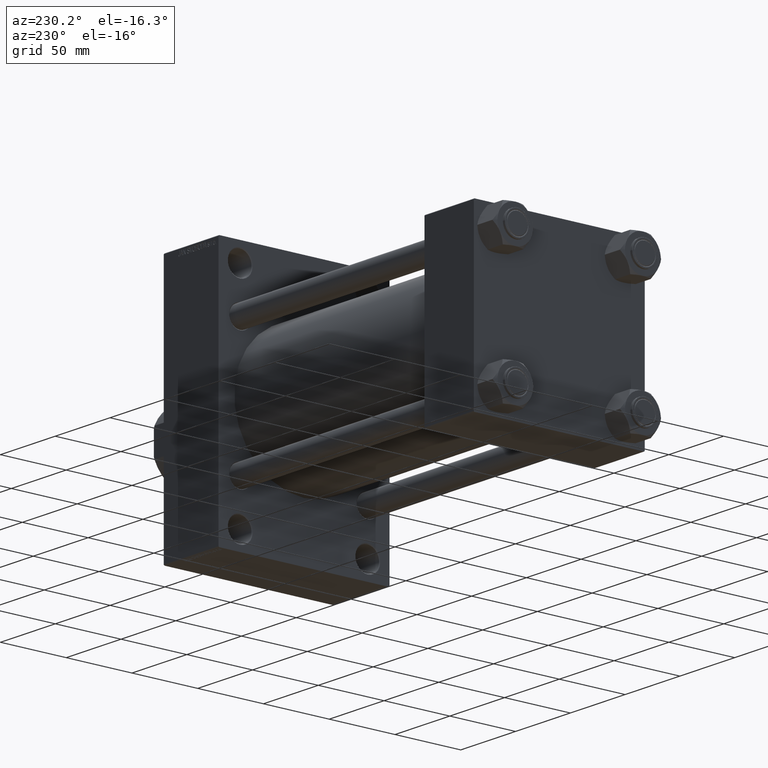
[diagram: clean part render]
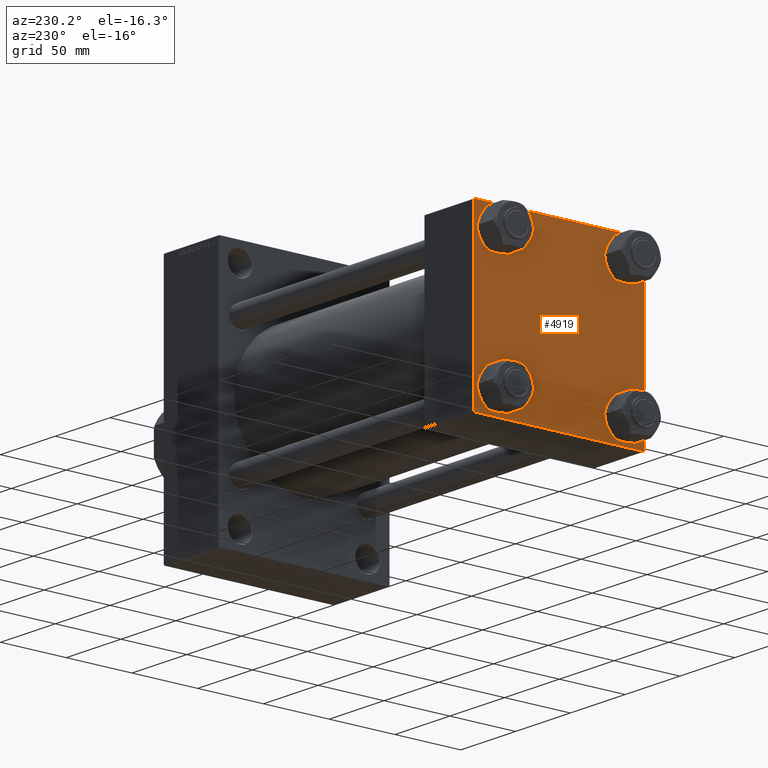
[diagram: same view with one face highlighted and labeled with its STEP entity id]
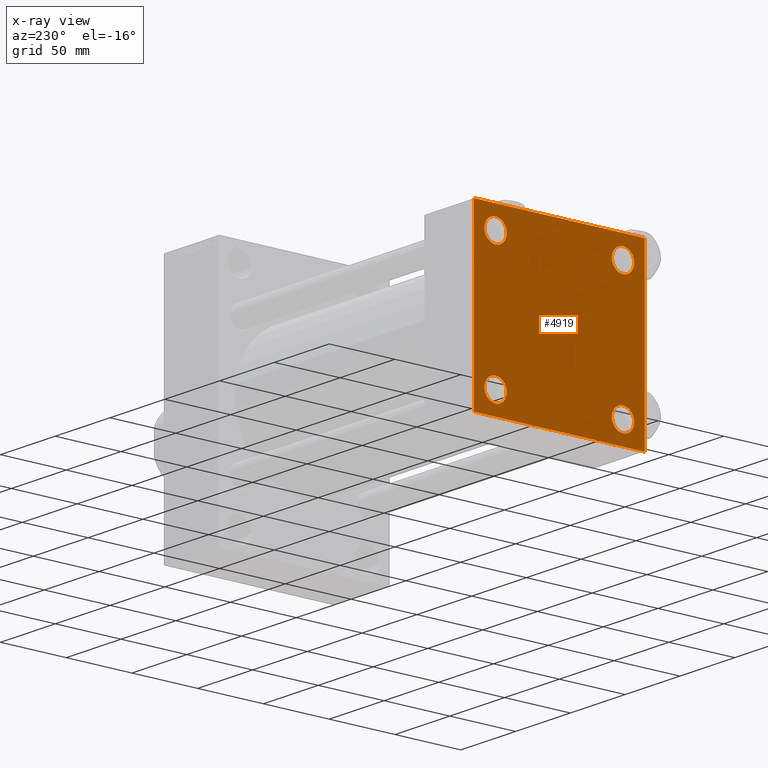
[diagram: x-ray of the same camera — body ghosted, the highlighted face saturated]
A machine part, auxiliary view. The second image highlights one B-rep face of the part: STEP entity #4919.
The next image is the same camera in x-ray: the body ghosted, the highlighted face saturated — about 0% of this face is hidden behind the body in this view.
In plain terms, the highlighted planar face has unit normal (-1, 0, 0).
Its self-contained STEP definition (entity closure, byte-faithful):
#38 = LINE ( 'NONE', #18143, #10574 ) ;
#48 = EDGE_LOOP ( 'NONE', ( #11222, #20313 ) ) ;
#607 = VECTOR ( 'NONE', #25016, 1000.000000000000000 ) ;
#1031 = VECTOR ( 'NONE', #32071, 1000.000000000000000 ) ;
#1186 = DIRECTION ( 'NONE',  ( 1.000000000000000000, -0.000000000000000000, 0.000000000000000000 ) ) ;
#1323 = EDGE_LOOP ( 'NONE', ( #31690, #28430, #8365, #35367, #41156, #17606, #10657, #9487 ) ) ;
#1426 = DIRECTION ( 'NONE',  ( 0.000000000000000000, 0.000000000000000000, 1.000000000000000000 ) ) ;
#1789 = EDGE_CURVE ( 'NONE', #27943, #20549, #7129, .T. ) ;
#2237 = CARTESIAN_POINT ( 'NONE',  ( 0.000000000000000000, -64.49999999999997158, 65.00000000000000000 ) ) ;
#2377 = AXIS2_PLACEMENT_3D ( 'NONE', #5507, #38829, #31565 ) ;
#2604 = AXIS2_PLACEMENT_3D ( 'NONE', #44673, #37896, #16160 ) ;
#2644 = AXIS2_PLACEMENT_3D ( 'NONE', #11565, #1186, #11804 ) ;
#2728 = VERTEX_POINT ( 'NONE', #33144 ) ;
#3008 = VERTEX_POINT ( 'NONE', #4369 ) ;
#3076 = LINE ( 'NONE', #35906, #607 ) ;
#3269 = CARTESIAN_POINT ( 'NONE',  ( 0.000000000000000000, -64.75000000000176215, -64.74999999999816680 ) ) ;
#3898 = VERTEX_POINT ( 'NONE', #6326 ) ;
#4066 = DIRECTION ( 'NONE',  ( 0.000000000000000000, 0.000000000000000000, 1.000000000000000000 ) ) ;
#4141 = FACE_BOUND ( 'NONE', #45693, .T. ) ;
#4235 = AXIS2_PLACEMENT_3D ( 'NONE', #6819, #15009, #36975 ) ;
#4369 = CARTESIAN_POINT ( 'NONE',  ( 0.000000000000000000, 48.45000000000000995, 56.95000000000002416 ) ) ;
#4483 = CARTESIAN_POINT ( 'NONE',  ( 0.000000000000000000, -48.44999999999999574, -39.95000000000001705 ) ) ;
#4919 = ADVANCED_FACE ( 'NONE', ( #4141, #11866, #26093, #41340, #22710 ), #40852, .T. ) ;
#5111 = EDGE_CURVE ( 'NONE', #8240, #3008, #7241, .T. ) ;
#5507 = CARTESIAN_POINT ( 'NONE',  ( 0.000000000000000000, -48.44999999999999574, -48.45000000000003126 ) ) ;
#5948 = CARTESIAN_POINT ( 'NONE',  ( 0.000000000000000000, 48.45000000000000995, -39.95000000000000284 ) ) ;
#6326 = CARTESIAN_POINT ( 'NONE',  ( 0.000000000000000000, -48.44999999999999574, 56.95000000000003837 ) ) ;
#6782 = EDGE_CURVE ( 'NONE', #7573, #3898, #38151, .T. ) ;
#6819 = CARTESIAN_POINT ( 'NONE',  ( 0.000000000000000000, -48.44999999999999574, 48.45000000000003126 ) ) ;
#6890 = LINE ( 'NONE', #3269, #20554 ) ;
#7129 = CIRCLE ( 'NONE', #34148, 8.500000000000007105 ) ;
#7164 = EDGE_CURVE ( 'NONE', #20549, #27943, #8095, .T. ) ;
#7241 = CIRCLE ( 'NONE', #2644, 8.500000000000007105 ) ;
#7573 = VERTEX_POINT ( 'NONE', #41234 ) ;
#8095 = CIRCLE ( 'NONE', #2604, 8.500000000000007105 ) ;
#8240 = VERTEX_POINT ( 'NONE', #29137 ) ;
#8365 = ORIENTED_EDGE ( 'NONE', *, *, #36643, .T. ) ;
#8665 = DIRECTION ( 'NONE',  ( 1.000000000000000000, -0.000000000000000000, 0.000000000000000000 ) ) ;
#9446 = CARTESIAN_POINT ( 'NONE',  ( 0.000000000000000000, -65.00000000000000000, -64.49999999999991473 ) ) ;
#9487 = ORIENTED_EDGE ( 'NONE', *, *, #13123, .T. ) ;
#10574 = VECTOR ( 'NONE', #40124, 1000.000000000000114 ) ;
#10657 = ORIENTED_EDGE ( 'NONE', *, *, #29380, .F. ) ;
#10955 = CARTESIAN_POINT ( 'NONE',  ( 0.000000000000000000, 65.00000000000000000, -64.99999999999998579 ) ) ;
#11222 = ORIENTED_EDGE ( 'NONE', *, *, #1789, .T. ) ;
#11565 = CARTESIAN_POINT ( 'NONE',  ( 0.000000000000000000, 48.45000000000000995, 48.45000000000001705 ) ) ;
#11701 = ORIENTED_EDGE ( 'NONE', *, *, #46616, .T. ) ;
#11804 = DIRECTION ( 'NONE',  ( 0.000000000000000000, 0.000000000000000000, 1.000000000000000000 ) ) ;
#11866 = FACE_BOUND ( 'NONE', #24830, .T. ) ;
#12346 = CARTESIAN_POINT ( 'NONE',  ( 0.000000000000000000, 0.000000000000000000, 0.000000000000000000 ) ) ;
#13123 = EDGE_CURVE ( 'NONE', #24679, #44660, #32268, .T. ) ;
#13168 = CIRCLE ( 'NONE', #2377, 8.500000000000007105 ) ;
#13499 = LINE ( 'NONE', #46580, #1031 ) ;
#15009 = DIRECTION ( 'NONE',  ( 1.000000000000000000, -0.000000000000000000, 0.000000000000000000 ) ) ;
#15167 = DIRECTION ( 'NONE',  ( 1.000000000000000000, -0.000000000000000000, 0.000000000000000000 ) ) ;
#15618 = CARTESIAN_POINT ( 'NONE',  ( 0.000000000000000000, 64.49999999999997158, 65.00000000000001421 ) ) ;
#15725 = DIRECTION ( 'NONE',  ( -0.000000000000000000, 0.000000000000000000, 1.000000000000000000 ) ) ;
#16160 = DIRECTION ( 'NONE',  ( 0.000000000000000000, 0.000000000000000000, 1.000000000000000000 ) ) ;
#16508 = CARTESIAN_POINT ( 'NONE',  ( 0.000000000000000000, -48.44999999999999574, -48.45000000000003126 ) ) ;
#17606 = ORIENTED_EDGE ( 'NONE', *, *, #21929, .T. ) ;
#17724 = DIRECTION ( 'NONE',  ( 0.000000000000000000, -1.000000000000000000, -1.067522139062650425E-16 ) ) ;
#17983 = DIRECTION ( 'NONE',  ( 0.000000000000000000, -0.7071067811865279218, 0.7071067811865671127 ) ) ;
#18143 = CARTESIAN_POINT ( 'NONE',  ( 0.000000000000000000, 64.74999999999997158, -64.74999999999997158 ) ) ;
#19194 = EDGE_CURVE ( 'NONE', #32174, #26499, #13168, .T. ) ;
#20189 = EDGE_CURVE ( 'NONE', #26499, #32174, #29365, .T. ) ;
#20313 = ORIENTED_EDGE ( 'NONE', *, *, #7164, .T. ) ;
#20549 = VERTEX_POINT ( 'NONE', #31649 ) ;
#20554 = VECTOR ( 'NONE', #17983, 1000.000000000000000 ) ;
#21573 = LINE ( 'NONE', #10955, #22854 ) ;
#21582 = CIRCLE ( 'NONE', #33173, 8.500000000000007105 ) ;
#21759 = EDGE_CURVE ( 'NONE', #3898, #7573, #27101, .T. ) ;
#21929 = EDGE_CURVE ( 'NONE', #2728, #30095, #44769, .T. ) ;
#22528 = DIRECTION ( 'NONE',  ( -0.000000000000000000, 0.7071067811865672237, 0.7071067811865279218 ) ) ;
#22710 = FACE_OUTER_BOUND ( 'NONE', #1323, .T. ) ;
#22854 = VECTOR ( 'NONE', #17724, 1000.000000000000000 ) ;
#23979 = DIRECTION ( 'NONE',  ( 0.000000000000000000, 0.000000000000000000, 1.000000000000000000 ) ) ;
#24159 = VERTEX_POINT ( 'NONE', #9446 ) ;
#24679 = VERTEX_POINT ( 'NONE', #15618 ) ;
#24830 = EDGE_LOOP ( 'NONE', ( #45007, #24944 ) ) ;
#24944 = ORIENTED_EDGE ( 'NONE', *, *, #20189, .T. ) ;
#25016 = DIRECTION ( 'NONE',  ( 0.000000000000000000, 0.000000000000000000, -1.000000000000000000 ) ) ;
#26093 = FACE_BOUND ( 'NONE', #48, .T. ) ;
#26381 = ORIENTED_EDGE ( 'NONE', *, *, #21759, .T. ) ;
#26499 = VERTEX_POINT ( 'NONE', #38692 ) ;
#27101 = CIRCLE ( 'NONE', #34040, 8.500000000000007105 ) ;
#27110 = EDGE_LOOP ( 'NONE', ( #11701, #30763 ) ) ;
#27943 = VERTEX_POINT ( 'NONE', #5948 ) ;
#28187 = CARTESIAN_POINT ( 'NONE',  ( 0.000000000000000000, 48.45000000000000995, -48.45000000000001705 ) ) ;
#28430 = ORIENTED_EDGE ( 'NONE', *, *, #42156, .T. ) ;
#28907 = CARTESIAN_POINT ( 'NONE',  ( 0.000000000000000000, 65.00000000000000000, -64.49999999999995737 ) ) ;
#29137 = CARTESIAN_POINT ( 'NONE',  ( 0.000000000000000000, 48.45000000000000995, 39.95000000000000284 ) ) ;
#29365 = CIRCLE ( 'NONE', #40980, 8.500000000000007105 ) ;
#29380 = EDGE_CURVE ( 'NONE', #24679, #30095, #13499, .T. ) ;
#29639 = CARTESIAN_POINT ( 'NONE',  ( 0.000000000000000000, 64.49999999999997158, -64.99999999999998579 ) ) ;
#29687 = VECTOR ( 'NONE', #29696, 1000.000000000000000 ) ;
#29693 = DIRECTION ( 'NONE',  ( 0.000000000000000000, 0.000000000000000000, 1.000000000000000000 ) ) ;
#29696 = DIRECTION ( 'NONE',  ( 0.000000000000000000, 0.000000000000000000, -1.000000000000000000 ) ) ;
#29937 = CARTESIAN_POINT ( 'NONE',  ( 0.000000000000000000, -65.00000000000000000, 65.00000000000000000 ) ) ;
#30025 = VERTEX_POINT ( 'NONE', #45707 ) ;
#30095 = VERTEX_POINT ( 'NONE', #2237 ) ;
#30763 = ORIENTED_EDGE ( 'NONE', *, *, #5111, .T. ) ;
#31230 = DIRECTION ( 'NONE',  ( 1.000000000000000000, -0.000000000000000000, 0.000000000000000000 ) ) ;
#31565 = DIRECTION ( 'NONE',  ( 0.000000000000000000, 0.000000000000000000, 1.000000000000000000 ) ) ;
#31649 = CARTESIAN_POINT ( 'NONE',  ( 0.000000000000000000, 48.45000000000000995, -56.95000000000002416 ) ) ;
#31690 = ORIENTED_EDGE ( 'NONE', *, *, #43733, .T. ) ;
#32071 = DIRECTION ( 'NONE',  ( 0.000000000000000000, -1.000000000000000000, -1.067522139062650425E-16 ) ) ;
#32174 = VERTEX_POINT ( 'NONE', #4483 ) ;
#32268 = LINE ( 'NONE', #47239, #35951 ) ;
#33144 = CARTESIAN_POINT ( 'NONE',  ( 0.000000000000000000, -65.00000000000000000, 64.50000000000000000 ) ) ;
#33173 = AXIS2_PLACEMENT_3D ( 'NONE', #41262, #15167, #4066 ) ;
#33301 = CARTESIAN_POINT ( 'NONE',  ( 0.000000000000000000, -48.44999999999999574, 48.45000000000003126 ) ) ;
#33723 = EDGE_CURVE ( 'NONE', #2728, #24159, #44437, .T. ) ;
#34040 = AXIS2_PLACEMENT_3D ( 'NONE', #33301, #40323, #29693 ) ;
#34125 = CARTESIAN_POINT ( 'NONE',  ( -0.000000000000000000, -64.74999999999819522, 64.75000000000179057 ) ) ;
#34148 = AXIS2_PLACEMENT_3D ( 'NONE', #28187, #8665, #1426 ) ;
#35367 = ORIENTED_EDGE ( 'NONE', *, *, #40760, .T. ) ;
#35906 = CARTESIAN_POINT ( 'NONE',  ( 0.000000000000000000, 65.00000000000000000, 65.00000000000001421 ) ) ;
#35951 = VECTOR ( 'NONE', #39762, 1000.000000000000114 ) ;
#36643 = EDGE_CURVE ( 'NONE', #47430, #30025, #21573, .T. ) ;
#36961 = DIRECTION ( 'NONE',  ( -1.000000000000000000, 0.000000000000000000, -0.000000000000000000 ) ) ;
#36975 = DIRECTION ( 'NONE',  ( 0.000000000000000000, 0.000000000000000000, 1.000000000000000000 ) ) ;
#37110 = CARTESIAN_POINT ( 'NONE',  ( 0.000000000000000000, 65.00000000000000000, 64.49999999999998579 ) ) ;
#37896 = DIRECTION ( 'NONE',  ( 1.000000000000000000, -0.000000000000000000, 0.000000000000000000 ) ) ;
#38151 = CIRCLE ( 'NONE', #4235, 8.500000000000007105 ) ;
#38692 = CARTESIAN_POINT ( 'NONE',  ( 0.000000000000000000, -48.44999999999999574, -56.95000000000003837 ) ) ;
#38829 = DIRECTION ( 'NONE',  ( 1.000000000000000000, -0.000000000000000000, 0.000000000000000000 ) ) ;
#38879 = AXIS2_PLACEMENT_3D ( 'NONE', #12346, #36961, #15725 ) ;
#39762 = DIRECTION ( 'NONE',  ( 0.000000000000000000, 0.7071067811865474617, -0.7071067811865474617 ) ) ;
#40124 = DIRECTION ( 'NONE',  ( -0.000000000000000000, -0.7071067811865474617, -0.7071067811865474617 ) ) ;
#40323 = DIRECTION ( 'NONE',  ( 1.000000000000000000, -0.000000000000000000, 0.000000000000000000 ) ) ;
#40410 = VERTEX_POINT ( 'NONE', #28907 ) ;
#40760 = EDGE_CURVE ( 'NONE', #30025, #24159, #6890, .T. ) ;
#40852 = PLANE ( 'NONE',  #38879 ) ;
#40980 = AXIS2_PLACEMENT_3D ( 'NONE', #16508, #31230, #23979 ) ;
#41156 = ORIENTED_EDGE ( 'NONE', *, *, #33723, .F. ) ;
#41234 = CARTESIAN_POINT ( 'NONE',  ( 0.000000000000000000, -48.44999999999999574, 39.95000000000001705 ) ) ;
#41262 = CARTESIAN_POINT ( 'NONE',  ( 0.000000000000000000, 48.45000000000000995, 48.45000000000001705 ) ) ;
#41340 = FACE_BOUND ( 'NONE', #27110, .T. ) ;
#42156 = EDGE_CURVE ( 'NONE', #40410, #47430, #38, .T. ) ;
#43733 = EDGE_CURVE ( 'NONE', #44660, #40410, #3076, .T. ) ;
#44437 = LINE ( 'NONE', #29937, #29687 ) ;
#44660 = VERTEX_POINT ( 'NONE', #37110 ) ;
#44673 = CARTESIAN_POINT ( 'NONE',  ( 0.000000000000000000, 48.45000000000000995, -48.45000000000001705 ) ) ;
#44769 = LINE ( 'NONE', #34125, #47170 ) ;
#45007 = ORIENTED_EDGE ( 'NONE', *, *, #19194, .T. ) ;
#45248 = ORIENTED_EDGE ( 'NONE', *, *, #6782, .T. ) ;
#45693 = EDGE_LOOP ( 'NONE', ( #26381, #45248 ) ) ;
#45707 = CARTESIAN_POINT ( 'NONE',  ( 0.000000000000000000, -64.49999999999994316, -65.00000000000000000 ) ) ;
#46580 = CARTESIAN_POINT ( 'NONE',  ( 0.000000000000000000, 65.00000000000000000, 65.00000000000001421 ) ) ;
#46616 = EDGE_CURVE ( 'NONE', #3008, #8240, #21582, .T. ) ;
#47170 = VECTOR ( 'NONE', #22528, 1000.000000000000000 ) ;
#47239 = CARTESIAN_POINT ( 'NONE',  ( 0.000000000000000000, 64.74999999999998579, 64.74999999999998579 ) ) ;
#47430 = VERTEX_POINT ( 'NONE', #29639 ) ;